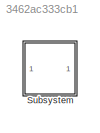
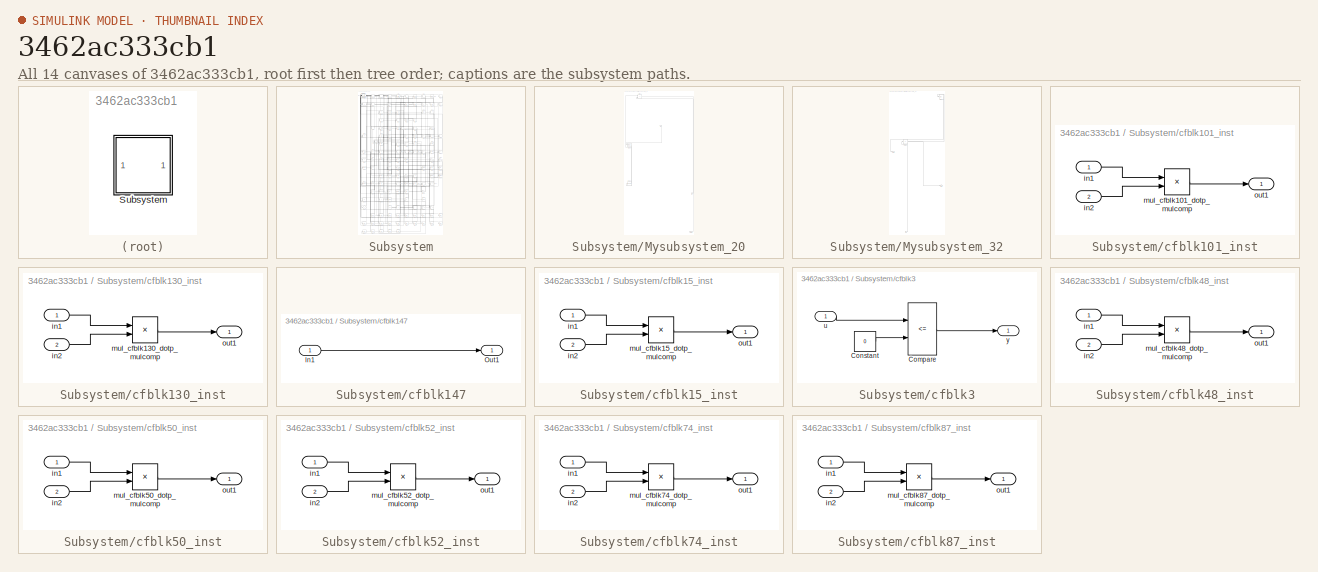
[diagram: thumbnail index - all 14 canvases of the model, root first then tree order]
MODEL slx_3462ac333cb1
KIND model
CONFIG AbsTol = auto
CONFIG EnableMultiTasking = off
CONFIG FixedStep = auto
CONFIG MaxStep = auto
CONFIG MinStep = auto
CONFIG RelTol = 1e-3
CONFIG SampleTimeConstraint = Unconstrained
CONFIG SolverName = VariableStepAuto
CONFIG StartTime = 0.0
CONFIG StopTime = 10.0
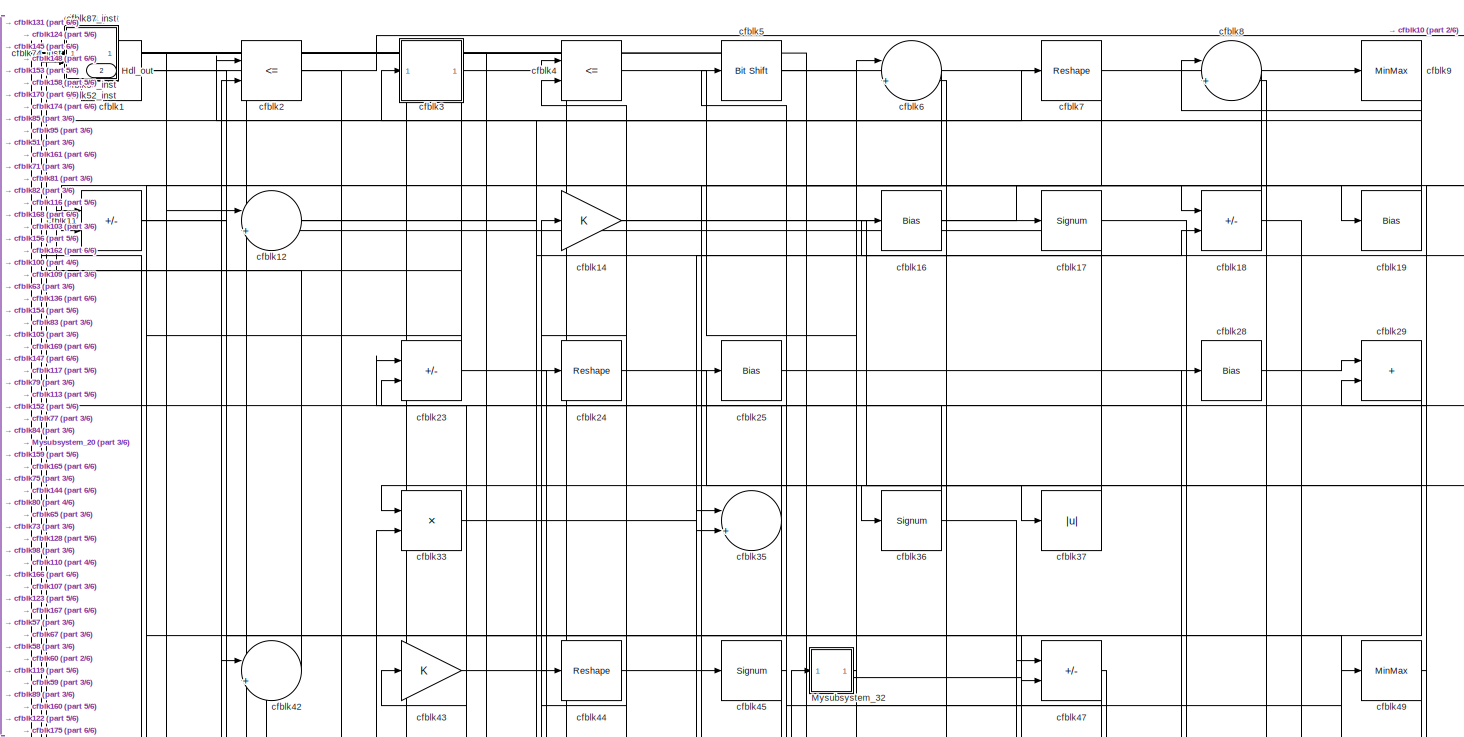
[diagram: Subsystem - part 1/6, full width, top band]
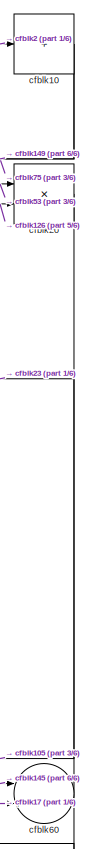
[diagram: Subsystem - part 2/6, top right region]
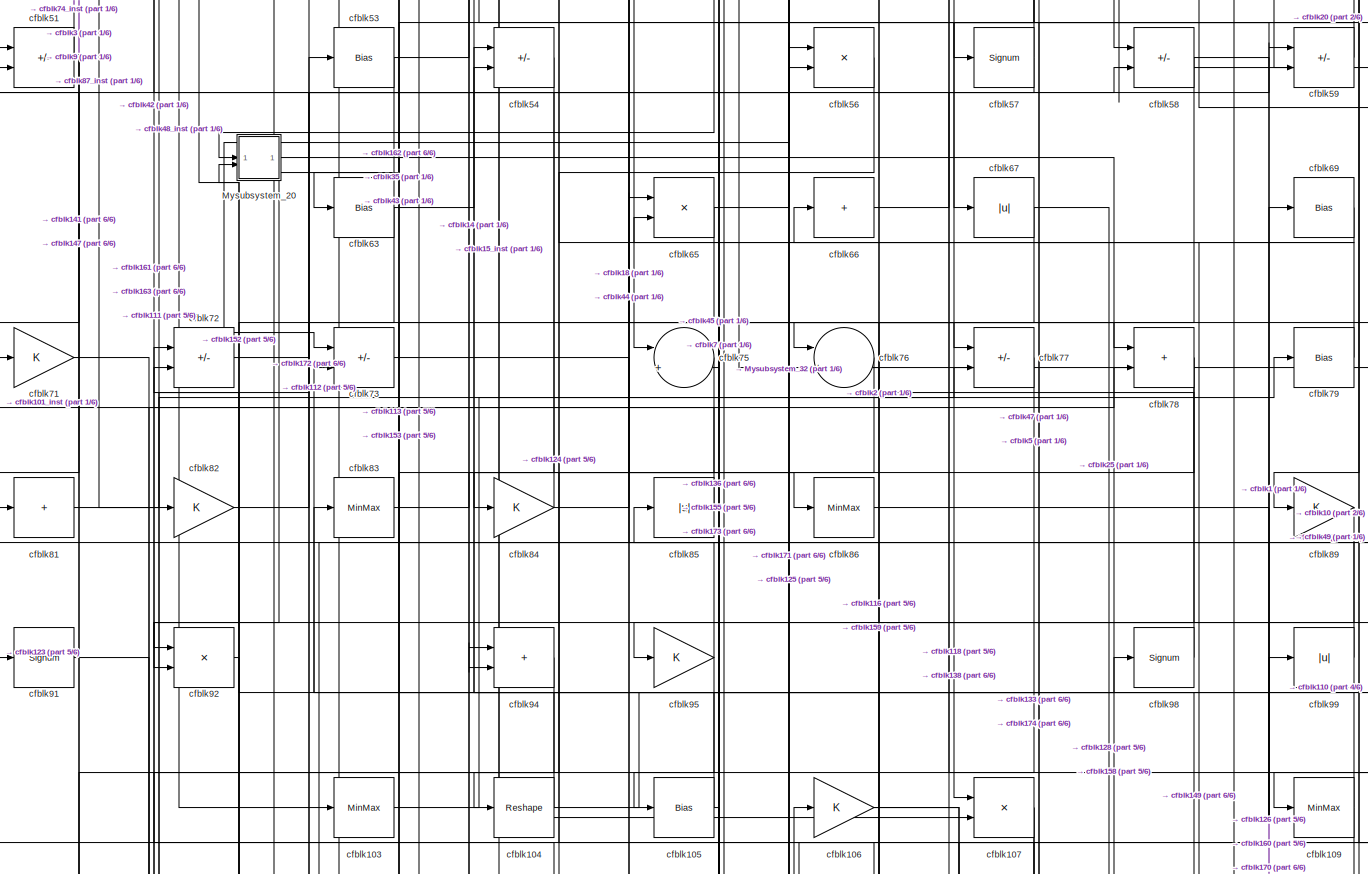
[diagram: Subsystem - part 3/6, full width, middle band]
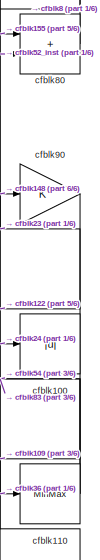
[diagram: Subsystem - part 4/6, middle right region]
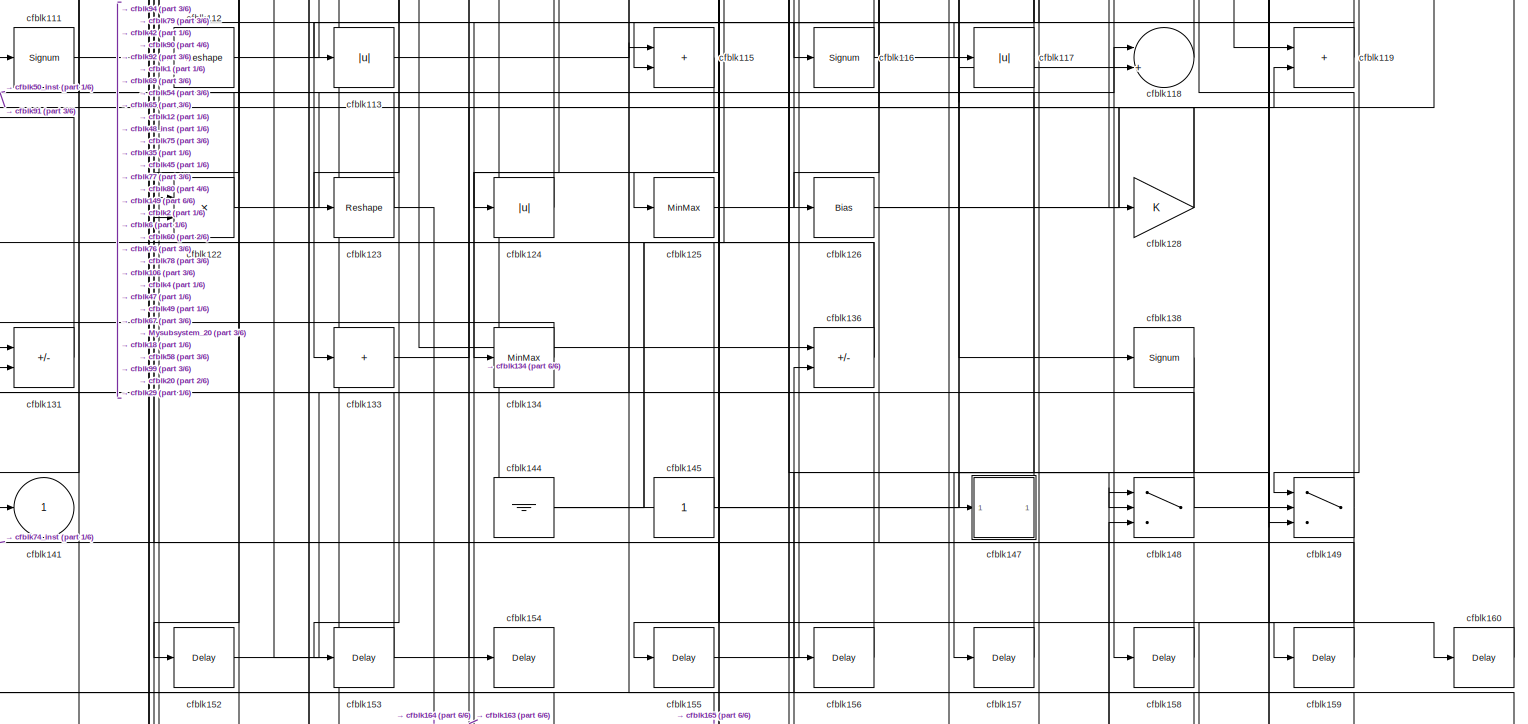
[diagram: Subsystem - part 5/6, full width, bottom band]
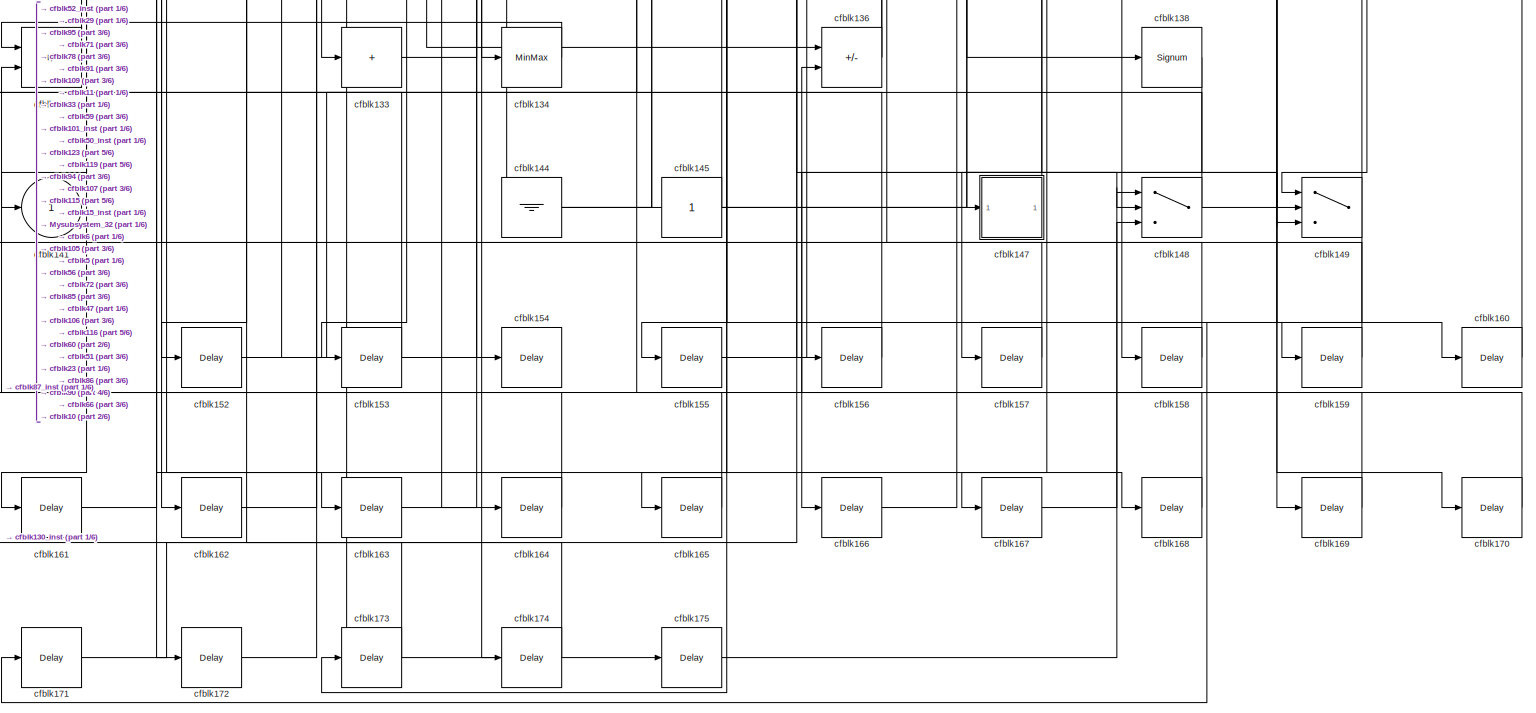
[diagram: Subsystem - part 6/6, full width, bottom band]
BLOCK [SubSystem] Subsystem
BLOCK [Outport] Subsystem/Hdl_out
  OutDataTypeStr = uint8
  Port = 2
  SampleTime = 1
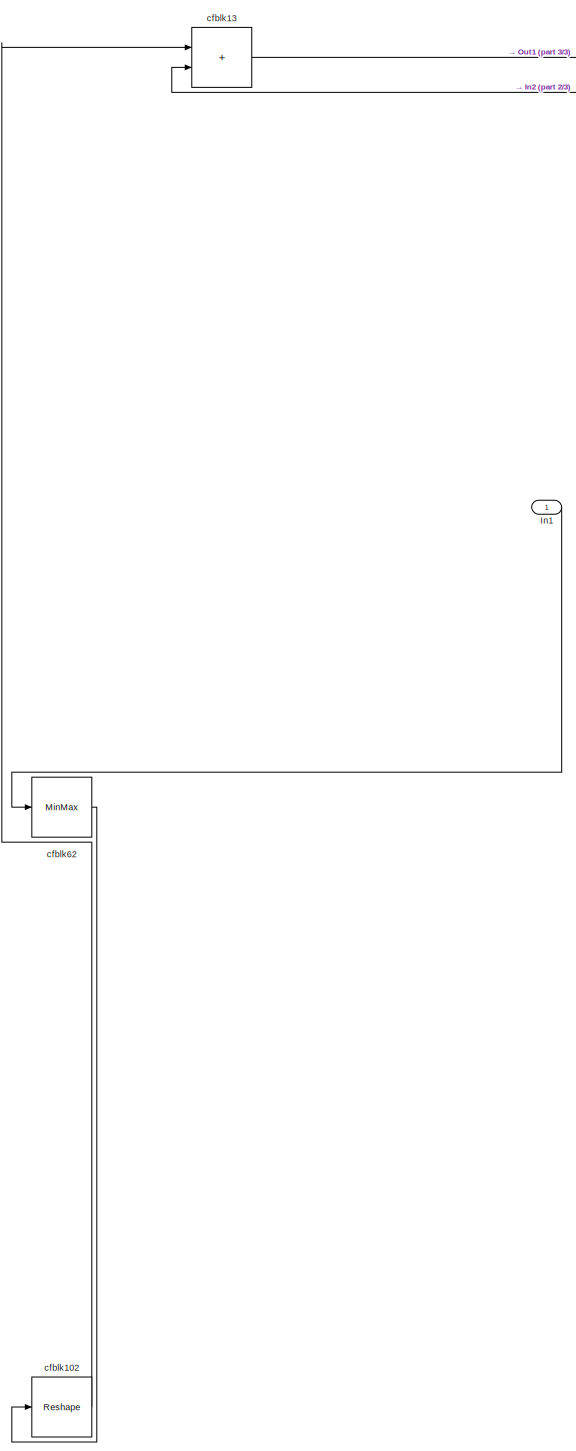
[diagram: Subsystem/Mysubsystem_20 - part 1/3, middle left region]
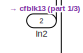
[diagram: Subsystem/Mysubsystem_20 - part 2/3, bottom right region]
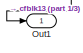
[diagram: Subsystem/Mysubsystem_20 - part 3/3, bottom right region]
BLOCK [SubSystem] Subsystem/Mysubsystem_20
BLOCK [Inport] Subsystem/Mysubsystem_20/In1
  OutDataTypeStr = uint8
  PortDimensions = 1
  SampleTime = 1
BLOCK [Inport] Subsystem/Mysubsystem_20/In2
  OutDataTypeStr = uint8
  Port = 2
  PortDimensions = 1
  SampleTime = 1
BLOCK [Outport] Subsystem/Mysubsystem_20/Out1
  SampleTime = 1
BLOCK [Reshape] Subsystem/Mysubsystem_20/cfblk102
BLOCK [Sum] Subsystem/Mysubsystem_20/cfblk13
  IconShape = rectangular
BLOCK [MinMax] Subsystem/Mysubsystem_20/cfblk62
BLOCK [SubSystem] Subsystem/Mysubsystem_32
BLOCK [Inport] Subsystem/Mysubsystem_32/In1
  OutDataTypeStr = uint8
  PortDimensions = 1
  SampleTime = 1
BLOCK [Outport] Subsystem/Mysubsystem_32/Out1
  SampleTime = 1
BLOCK [Outport] Subsystem/Mysubsystem_32/Out2
  Port = 2
  SampleTime = 1
BLOCK [Abs] Subsystem/Mysubsystem_32/cfblk27
  SaturateOnIntegerOverflow = off
BLOCK [Sum] Subsystem/Mysubsystem_32/cfblk64
  IconShape = rectangular
  Inputs = +
BLOCK [Reference] Subsystem/cfblk1  REF=simulink/Logic and Bit
Operations/Extract Bits
  LibrarySourceBlock = hdlsllib/Logic and Bit\nOperations/Extract Bits
  SourceBlock = simulink/Logic and Bit\nOperations/Extract Bits
  SourceType = Extract Bits
BLOCK [Sum] Subsystem/cfblk10
  IconShape = rectangular
  Inputs = +
  OutDataTypeStr = uint8
BLOCK [Abs] Subsystem/cfblk100
  OutDataTypeStr = uint8
  SaturateOnIntegerOverflow = off
BLOCK [SubSystem] Subsystem/cfblk101_inst
BLOCK [Inport] Subsystem/cfblk101_inst/in1
  OutDataTypeStr = uint8
  SampleTime = 1
BLOCK [Inport] Subsystem/cfblk101_inst/in2
  OutDataTypeStr = uint8
  Port = 2
  SampleTime = 1
BLOCK [Product] Subsystem/cfblk101_inst/mul_cfblk101_dotp_mulcomp
  Inputs = **
  OutDataTypeStr = uint8
  SampleTime = 1
BLOCK [Outport] Subsystem/cfblk101_inst/out1
  OutDataTypeStr = uint8
  SampleTime = 1
BLOCK [MinMax] Subsystem/cfblk103
  OutDataTypeStr = uint8
BLOCK [Reshape] Subsystem/cfblk104
BLOCK [Bias] Subsystem/cfblk105
  Bias = 0.0
  SaturateOnIntegerOverflow = off
BLOCK [Gain] Subsystem/cfblk106
  OutDataTypeStr = uint8
BLOCK [Product] Subsystem/cfblk107
  Inputs = */
  OutDataTypeStr = uint8
  RndMeth = Zero
  SaturateOnIntegerOverflow = on
BLOCK [MinMax] Subsystem/cfblk109
  OutDataTypeStr = uint8
BLOCK [Sum] Subsystem/cfblk11
  IconShape = rectangular
  Inputs = +-
  OutDataTypeStr = uint8
BLOCK [MinMax] Subsystem/cfblk110
  OutDataTypeStr = uint8
BLOCK [Signum] Subsystem/cfblk111
BLOCK [Reshape] Subsystem/cfblk112
BLOCK [Abs] Subsystem/cfblk113
  OutDataTypeStr = uint8
  SaturateOnIntegerOverflow = off
BLOCK [Sum] Subsystem/cfblk115
  IconShape = rectangular
  OutDataTypeStr = uint8
BLOCK [Signum] Subsystem/cfblk116
BLOCK [Abs] Subsystem/cfblk117
  OutDataTypeStr = uint8
  SaturateOnIntegerOverflow = off
BLOCK [Sum] Subsystem/cfblk118
  Inputs = |++
  OutDataTypeStr = uint8
BLOCK [Sum] Subsystem/cfblk119
  IconShape = rectangular
  OutDataTypeStr = uint8
BLOCK [Sum] Subsystem/cfblk12
  Inputs = |++
  OutDataTypeStr = uint8
BLOCK [Product] Subsystem/cfblk122
  Inputs = */
  OutDataTypeStr = uint8
  RndMeth = Zero
  SaturateOnIntegerOverflow = on
BLOCK [Reshape] Subsystem/cfblk123
BLOCK [Abs] Subsystem/cfblk124
  OutDataTypeStr = uint8
  SaturateOnIntegerOverflow = off
BLOCK [MinMax] Subsystem/cfblk125
  OutDataTypeStr = uint8
BLOCK [Bias] Subsystem/cfblk126
  Bias = 0.0
  SaturateOnIntegerOverflow = off
BLOCK [Gain] Subsystem/cfblk128
  OutDataTypeStr = uint8
BLOCK [SubSystem] Subsystem/cfblk130_inst
BLOCK [Inport] Subsystem/cfblk130_inst/in1
  OutDataTypeStr = uint8
  SampleTime = 1
BLOCK [Inport] Subsystem/cfblk130_inst/in2
  OutDataTypeStr = uint8
  Port = 2
  SampleTime = 1
BLOCK [Product] Subsystem/cfblk130_inst/mul_cfblk130_dotp_mulcomp
  Inputs = **
  OutDataTypeStr = uint8
  SampleTime = 1
BLOCK [Outport] Subsystem/cfblk130_inst/out1
  OutDataTypeStr = uint8
  SampleTime = 1
BLOCK [Sum] Subsystem/cfblk131
  IconShape = rectangular
  Inputs = +-
  OutDataTypeStr = uint8
BLOCK [Sum] Subsystem/cfblk133
  IconShape = rectangular
  Inputs = +
  OutDataTypeStr = uint8
BLOCK [MinMax] Subsystem/cfblk134
  OutDataTypeStr = uint8
BLOCK [Sum] Subsystem/cfblk136
  IconShape = rectangular
  Inputs = +-
  OutDataTypeStr = uint8
BLOCK [Signum] Subsystem/cfblk138
BLOCK [Gain] Subsystem/cfblk14
  OutDataTypeStr = uint8
BLOCK [Outport] Subsystem/cfblk141
  OutDataTypeStr = uint8
  SampleTime = 1
  VectorParamsAs1DForOutWhenUnconnected = off
BLOCK [Ground] Subsystem/cfblk144
BLOCK [Constant] Subsystem/cfblk145
  OutDataTypeStr = uint8
  SampleTime = -1
BLOCK [SubSystem] Subsystem/cfblk147
BLOCK [Inport] Subsystem/cfblk147/In1
  OutDataTypeStr = uint8
  PortDimensions = 1
  SampleTime = 1
BLOCK [Outport] Subsystem/cfblk147/Out1
  SampleTime = 1
BLOCK [Switch] Subsystem/cfblk148
  InputSameDT = off
  OutDataTypeStr = uint8
  SaturateOnIntegerOverflow = off
BLOCK [Switch] Subsystem/cfblk149
  InputSameDT = off
  OutDataTypeStr = uint8
  SaturateOnIntegerOverflow = off
BLOCK [Delay] Subsystem/cfblk152
  InputPortMap = u0
  SampleTime = 1
BLOCK [Delay] Subsystem/cfblk153
  InputPortMap = u0
  SampleTime = 1
BLOCK [Delay] Subsystem/cfblk154
  InputPortMap = u0
  SampleTime = 1
BLOCK [Delay] Subsystem/cfblk155
  InputPortMap = u0
  SampleTime = 1
BLOCK [Delay] Subsystem/cfblk156
  InputPortMap = u0
  SampleTime = 1
BLOCK [Delay] Subsystem/cfblk157
  InputPortMap = u0
  SampleTime = 1
BLOCK [Delay] Subsystem/cfblk158
  InputPortMap = u0
  SampleTime = 1
BLOCK [Delay] Subsystem/cfblk159
  InputPortMap = u0
  SampleTime = 1
BLOCK [SubSystem] Subsystem/cfblk15_inst
BLOCK [Inport] Subsystem/cfblk15_inst/in1
  OutDataTypeStr = uint8
  SampleTime = 1
BLOCK [Inport] Subsystem/cfblk15_inst/in2
  OutDataTypeStr = uint8
  Port = 2
  SampleTime = 1
BLOCK [Product] Subsystem/cfblk15_inst/mul_cfblk15_dotp_mulcomp
  Inputs = **
  OutDataTypeStr = uint8
  SampleTime = 1
BLOCK [Outport] Subsystem/cfblk15_inst/out1
  OutDataTypeStr = uint8
  SampleTime = 1
BLOCK [Bias] Subsystem/cfblk16
  Bias = 0.0
  SaturateOnIntegerOverflow = off
BLOCK [Delay] Subsystem/cfblk160
  InputPortMap = u0
  SampleTime = 1
BLOCK [Delay] Subsystem/cfblk161
  InputPortMap = u0
  SampleTime = 1
BLOCK [Delay] Subsystem/cfblk162
  InputPortMap = u0
  SampleTime = 1
BLOCK [Delay] Subsystem/cfblk163
  InputPortMap = u0
  SampleTime = 1
BLOCK [Delay] Subsystem/cfblk164
  InputPortMap = u0
  SampleTime = 1
BLOCK [Delay] Subsystem/cfblk165
  InputPortMap = u0
  SampleTime = 1
BLOCK [Delay] Subsystem/cfblk166
  InputPortMap = u0
  SampleTime = 1
BLOCK [Delay] Subsystem/cfblk167
  InputPortMap = u0
  SampleTime = 1
BLOCK [Delay] Subsystem/cfblk168
  InputPortMap = u0
  SampleTime = 1
BLOCK [Delay] Subsystem/cfblk169
  InputPortMap = u0
  SampleTime = 1
BLOCK [Signum] Subsystem/cfblk17
BLOCK [Delay] Subsystem/cfblk170
  InputPortMap = u0
  SampleTime = 1
BLOCK [Delay] Subsystem/cfblk171
  InputPortMap = u0
  SampleTime = 1
BLOCK [Delay] Subsystem/cfblk172
  InputPortMap = u0
  SampleTime = 1
BLOCK [Delay] Subsystem/cfblk173
  InputPortMap = u0
  SampleTime = 1
BLOCK [Delay] Subsystem/cfblk174
  InputPortMap = u0
  SampleTime = 1
BLOCK [Delay] Subsystem/cfblk175
  InputPortMap = u0
  SampleTime = 1
BLOCK [Sum] Subsystem/cfblk18
  IconShape = rectangular
  Inputs = +-
  OutDataTypeStr = uint8
BLOCK [Bias] Subsystem/cfblk19
  Bias = 0.0
  SaturateOnIntegerOverflow = off
BLOCK [RelationalOperator] Subsystem/cfblk2
  InputSameDT = off
  Operator = <=
  OutDataTypeStr = boolean
BLOCK [Product] Subsystem/cfblk20
  Inputs = */
  OutDataTypeStr = uint8
  RndMeth = Zero
  SaturateOnIntegerOverflow = on
BLOCK [Sum] Subsystem/cfblk23
  IconShape = rectangular
  Inputs = +-
  OutDataTypeStr = uint8
BLOCK [Reshape] Subsystem/cfblk24
BLOCK [Bias] Subsystem/cfblk25
  Bias = 0.0
  SaturateOnIntegerOverflow = off
BLOCK [Bias] Subsystem/cfblk28
  Bias = 0.0
  SaturateOnIntegerOverflow = off
BLOCK [Sum] Subsystem/cfblk29
  IconShape = rectangular
  OutDataTypeStr = uint8
BLOCK [SubSystem] Subsystem/cfblk3
BLOCK [RelationalOperator] Subsystem/cfblk3/Compare
  Operator = <=
  OutDataTypeStr = fixdt(0, 8)
BLOCK [Constant] Subsystem/cfblk3/Constant
  DisableCoverage = on
  OutDataTypeStr = Inherit: Inherit via back propagation
  PreserveConstantTs = on
  SampleTime = -1
  Value = 0
BLOCK [Inport] Subsystem/cfblk3/u
  OutDataTypeStr = uint8
  SampleTime = 1
BLOCK [Outport] Subsystem/cfblk3/y
  SampleTime = 1
BLOCK [Product] Subsystem/cfblk33
  Inputs = */
  OutDataTypeStr = uint8
  RndMeth = Zero
  SaturateOnIntegerOverflow = on
BLOCK [Sum] Subsystem/cfblk35
  Inputs = |++
  OutDataTypeStr = uint8
BLOCK [Signum] Subsystem/cfblk36
BLOCK [Abs] Subsystem/cfblk37
  OutDataTypeStr = uint8
  SaturateOnIntegerOverflow = off
BLOCK [RelationalOperator] Subsystem/cfblk4
  InputSameDT = off
  Operator = <=
  OutDataTypeStr = boolean
BLOCK [Sum] Subsystem/cfblk42
  Inputs = |++
  OutDataTypeStr = uint8
BLOCK [Gain] Subsystem/cfblk43
  OutDataTypeStr = uint8
BLOCK [Reshape] Subsystem/cfblk44
BLOCK [Signum] Subsystem/cfblk45
BLOCK [Sum] Subsystem/cfblk47
  IconShape = rectangular
  Inputs = +-
  OutDataTypeStr = uint8
BLOCK [SubSystem] Subsystem/cfblk48_inst
BLOCK [Inport] Subsystem/cfblk48_inst/in1
  OutDataTypeStr = uint8
  SampleTime = 1
BLOCK [Inport] Subsystem/cfblk48_inst/in2
  OutDataTypeStr = uint8
  Port = 2
  SampleTime = 1
BLOCK [Product] Subsystem/cfblk48_inst/mul_cfblk48_dotp_mulcomp
  Inputs = **
  OutDataTypeStr = uint8
  SampleTime = 1
BLOCK [Outport] Subsystem/cfblk48_inst/out1
  OutDataTypeStr = uint8
  SampleTime = 1
BLOCK [MinMax] Subsystem/cfblk49
  OutDataTypeStr = uint8
BLOCK [Reference] Subsystem/cfblk5  REF=hdlsllib/Logic and Bit
Operations/Bit Shift
  SourceBlock = hdlsllib/Logic and Bit\nOperations/Bit Shift
  SourceType = Bit Shift
BLOCK [SubSystem] Subsystem/cfblk50_inst
BLOCK [Inport] Subsystem/cfblk50_inst/in1
  OutDataTypeStr = uint8
  SampleTime = 1
BLOCK [Inport] Subsystem/cfblk50_inst/in2
  OutDataTypeStr = uint8
  Port = 2
  SampleTime = 1
BLOCK [Product] Subsystem/cfblk50_inst/mul_cfblk50_dotp_mulcomp
  Inputs = **
  OutDataTypeStr = uint8
  SampleTime = 1
BLOCK [Outport] Subsystem/cfblk50_inst/out1
  OutDataTypeStr = uint8
  SampleTime = 1
BLOCK [Sum] Subsystem/cfblk51
  IconShape = rectangular
  Inputs = +-
  OutDataTypeStr = uint8
BLOCK [SubSystem] Subsystem/cfblk52_inst
BLOCK [Inport] Subsystem/cfblk52_inst/in1
  OutDataTypeStr = uint8
  SampleTime = 1
BLOCK [Inport] Subsystem/cfblk52_inst/in2
  OutDataTypeStr = uint8
  Port = 2
  SampleTime = 1
BLOCK [Product] Subsystem/cfblk52_inst/mul_cfblk52_dotp_mulcomp
  Inputs = **
  OutDataTypeStr = uint8
  SampleTime = 1
BLOCK [Outport] Subsystem/cfblk52_inst/out1
  OutDataTypeStr = uint8
  SampleTime = 1
BLOCK [Bias] Subsystem/cfblk53
  Bias = 0.0
  SaturateOnIntegerOverflow = off
BLOCK [Sum] Subsystem/cfblk54
  IconShape = rectangular
  Inputs = +-
  OutDataTypeStr = uint8
BLOCK [Product] Subsystem/cfblk56
  Inputs = */
  OutDataTypeStr = uint8
  RndMeth = Zero
  SaturateOnIntegerOverflow = on
BLOCK [Signum] Subsystem/cfblk57
BLOCK [Sum] Subsystem/cfblk58
  IconShape = rectangular
  Inputs = +-
  OutDataTypeStr = uint8
BLOCK [Sum] Subsystem/cfblk59
  IconShape = rectangular
  Inputs = +-
  OutDataTypeStr = uint8
BLOCK [Sum] Subsystem/cfblk6
  Inputs = |++
  OutDataTypeStr = uint8
BLOCK [Sum] Subsystem/cfblk60
  Inputs = |++
  OutDataTypeStr = uint8
BLOCK [Bias] Subsystem/cfblk63
  Bias = 0.0
  SaturateOnIntegerOverflow = off
BLOCK [Product] Subsystem/cfblk65
  Inputs = */
  OutDataTypeStr = uint8
  RndMeth = Zero
  SaturateOnIntegerOverflow = on
BLOCK [Sum] Subsystem/cfblk66
  IconShape = rectangular
  Inputs = +
  OutDataTypeStr = uint8
BLOCK [Abs] Subsystem/cfblk67
  OutDataTypeStr = uint8
  SaturateOnIntegerOverflow = off
BLOCK [Bias] Subsystem/cfblk69
  Bias = 0.0
  SaturateOnIntegerOverflow = off
BLOCK [Reshape] Subsystem/cfblk7
BLOCK [Gain] Subsystem/cfblk71
  OutDataTypeStr = uint8
BLOCK [Sum] Subsystem/cfblk72
  IconShape = rectangular
  Inputs = +-
  OutDataTypeStr = uint8
BLOCK [Sum] Subsystem/cfblk73
  IconShape = rectangular
  Inputs = +-
  OutDataTypeStr = uint8
BLOCK [SubSystem] Subsystem/cfblk74_inst
BLOCK [Inport] Subsystem/cfblk74_inst/in1
  OutDataTypeStr = uint8
  SampleTime = 1
BLOCK [Inport] Subsystem/cfblk74_inst/in2
  OutDataTypeStr = uint8
  Port = 2
  SampleTime = 1
BLOCK [Product] Subsystem/cfblk74_inst/mul_cfblk74_dotp_mulcomp
  Inputs = **
  OutDataTypeStr = uint8
  SampleTime = 1
BLOCK [Outport] Subsystem/cfblk74_inst/out1
  OutDataTypeStr = uint8
  SampleTime = 1
BLOCK [Sum] Subsystem/cfblk75
  Inputs = |++
  OutDataTypeStr = uint8
BLOCK [Sum] Subsystem/cfblk76
  Inputs = |++
  OutDataTypeStr = uint8
BLOCK [Sum] Subsystem/cfblk77
  IconShape = rectangular
  Inputs = +-
  OutDataTypeStr = uint8
BLOCK [Sum] Subsystem/cfblk78
  IconShape = rectangular
  OutDataTypeStr = uint8
BLOCK [Bias] Subsystem/cfblk79
  Bias = 0.0
  SaturateOnIntegerOverflow = off
BLOCK [Sum] Subsystem/cfblk8
  Inputs = |++
  OutDataTypeStr = uint8
BLOCK [Sum] Subsystem/cfblk80
  IconShape = rectangular
  OutDataTypeStr = uint8
BLOCK [Sum] Subsystem/cfblk81
  IconShape = rectangular
  Inputs = +
  OutDataTypeStr = uint8
BLOCK [Gain] Subsystem/cfblk82
  OutDataTypeStr = uint8
BLOCK [MinMax] Subsystem/cfblk83
  OutDataTypeStr = uint8
BLOCK [Gain] Subsystem/cfblk84
  OutDataTypeStr = uint8
BLOCK [Abs] Subsystem/cfblk85
  OutDataTypeStr = uint8
  SaturateOnIntegerOverflow = off
BLOCK [MinMax] Subsystem/cfblk86
  OutDataTypeStr = uint8
BLOCK [SubSystem] Subsystem/cfblk87_inst
BLOCK [Inport] Subsystem/cfblk87_inst/in1
  OutDataTypeStr = uint8
  SampleTime = 1
BLOCK [Inport] Subsystem/cfblk87_inst/in2
  OutDataTypeStr = uint8
  Port = 2
  SampleTime = 1
BLOCK [Product] Subsystem/cfblk87_inst/mul_cfblk87_dotp_mulcomp
  Inputs = **
  OutDataTypeStr = uint8
  SampleTime = 1
BLOCK [Outport] Subsystem/cfblk87_inst/out1
  OutDataTypeStr = uint8
  SampleTime = 1
BLOCK [Gain] Subsystem/cfblk89
  OutDataTypeStr = uint8
BLOCK [MinMax] Subsystem/cfblk9
  OutDataTypeStr = uint8
BLOCK [Gain] Subsystem/cfblk90
  OutDataTypeStr = uint8
BLOCK [Signum] Subsystem/cfblk91
BLOCK [Product] Subsystem/cfblk92
  Inputs = */
  OutDataTypeStr = uint8
  RndMeth = Zero
  SaturateOnIntegerOverflow = on
BLOCK [Sum] Subsystem/cfblk94
  IconShape = rectangular
  OutDataTypeStr = uint8
BLOCK [Gain] Subsystem/cfblk95
  OutDataTypeStr = uint8
BLOCK [Signum] Subsystem/cfblk98
BLOCK [Abs] Subsystem/cfblk99
  OutDataTypeStr = uint8
  SaturateOnIntegerOverflow = off
LINE Subsystem/Mysubsystem_20/In1:1 -> Subsystem/Mysubsystem_20/cfblk62:1
LINE Subsystem/Mysubsystem_20/In2:1 -> Subsystem/Mysubsystem_20/cfblk13:2
LINE Subsystem/Mysubsystem_20/cfblk102:1 -> Subsystem/Mysubsystem_20/cfblk13:1
LINE Subsystem/Mysubsystem_20/cfblk13:1 -> Subsystem/Mysubsystem_20/Out1:1
LINE Subsystem/Mysubsystem_20/cfblk62:1 -> Subsystem/Mysubsystem_20/cfblk102:1
LINE Subsystem/Mysubsystem_20:1 -> Subsystem/cfblk158:1
LINE Subsystem/Mysubsystem_32/In1:1 -> Subsystem/Mysubsystem_32/cfblk64:1
LINE Subsystem/Mysubsystem_32/cfblk27:1 -> Subsystem/Mysubsystem_32/Out1:1
NET Subsystem/Mysubsystem_32/cfblk64:1 -> Subsystem/Mysubsystem_32/Out2:1, Subsystem/Mysubsystem_32/cfblk27:1
LINE Subsystem/Mysubsystem_32:1 -> Subsystem/cfblk73:1
LINE Subsystem/Mysubsystem_32:2 -> Subsystem/cfblk107:1
NET Subsystem/cfblk100:1 -> Subsystem/cfblk109:1, Subsystem/cfblk23:2
LINE Subsystem/cfblk101_inst/in1:1 -> Subsystem/cfblk101_inst/mul_cfblk101_dotp_mulcomp:1
LINE Subsystem/cfblk101_inst/in2:1 -> Subsystem/cfblk101_inst/mul_cfblk101_dotp_mulcomp:2
LINE Subsystem/cfblk101_inst/mul_cfblk101_dotp_mulcomp:1 -> Subsystem/cfblk101_inst/out1:1
LINE Subsystem/cfblk101_inst:1 -> Subsystem/cfblk175:1
LINE Subsystem/cfblk103:1 -> Subsystem/cfblk77:2
NET Subsystem/cfblk104:1 -> Subsystem/cfblk73:2, Subsystem/cfblk98:1
NET Subsystem/cfblk105:1 -> Subsystem/cfblk14:1, Subsystem/cfblk173:1
NET Subsystem/cfblk106:1 -> Subsystem/cfblk118:2, Subsystem/cfblk138:1
NET Subsystem/cfblk107:1 -> Subsystem/cfblk133:1, Subsystem/cfblk174:1
NET Subsystem/cfblk109:1 -> Subsystem/cfblk162:1, Subsystem/cfblk43:1
NET Subsystem/cfblk10:1 -> Subsystem/cfblk149:1, Subsystem/cfblk75:1
NET Subsystem/cfblk110:1 -> Subsystem/cfblk54:1, Subsystem/cfblk83:1
LINE Subsystem/cfblk111:1 -> Subsystem/cfblk79:1
LINE Subsystem/cfblk112:1 -> Subsystem/cfblk69:1
LINE Subsystem/cfblk113:1 -> Subsystem/cfblk45:1
LINE Subsystem/cfblk115:1 -> Subsystem/cfblk134:1
NET Subsystem/cfblk116:1 -> Subsystem/cfblk149:3, Subsystem/cfblk2:2
NET Subsystem/cfblk117:1 -> Subsystem/cfblk157:1, Subsystem/cfblk4:2
LINE Subsystem/cfblk118:1 -> Subsystem/Mysubsystem_20:2
LINE Subsystem/cfblk119:1 -> Subsystem/cfblk115:2
NET Subsystem/cfblk11:1 -> Subsystem/cfblk168:1, Subsystem/cfblk47:2
NET Subsystem/cfblk122:1 -> Subsystem/cfblk118:1, Subsystem/cfblk50_inst:2
NET Subsystem/cfblk123:1 -> Subsystem/cfblk164:1, Subsystem/cfblk91:1
LINE Subsystem/cfblk124:1 -> Subsystem/cfblk48_inst:2
LINE Subsystem/cfblk125:1 -> Subsystem/cfblk106:1
NET Subsystem/cfblk126:1 -> Subsystem/cfblk20:2, Subsystem/cfblk99:1
NET Subsystem/cfblk128:1 -> Subsystem/cfblk111:1, Subsystem/cfblk6:2
NET Subsystem/cfblk12:1 -> Subsystem/cfblk154:1, Subsystem/cfblk18:1
LINE Subsystem/cfblk130_inst/in1:1 -> Subsystem/cfblk130_inst/mul_cfblk130_dotp_mulcomp:1
LINE Subsystem/cfblk130_inst/in2:1 -> Subsystem/cfblk130_inst/mul_cfblk130_dotp_mulcomp:2
LINE Subsystem/cfblk130_inst/mul_cfblk130_dotp_mulcomp:1 -> Subsystem/cfblk130_inst/out1:1
LINE Subsystem/cfblk130_inst:1 -> Subsystem/cfblk17:1
LINE Subsystem/cfblk131:1 -> Subsystem/cfblk52_inst:1
LINE Subsystem/cfblk133:1 -> Subsystem/cfblk94:1
LINE Subsystem/cfblk134:1 -> Subsystem/cfblk131:1
NET Subsystem/cfblk136:1 -> Subsystem/cfblk72:1, Subsystem/cfblk85:1
LINE Subsystem/cfblk138:1 -> Subsystem/cfblk166:1
NET Subsystem/cfblk144:1 -> Subsystem/Mysubsystem_32:1, Subsystem/cfblk6:1
NET Subsystem/cfblk145:1 -> Subsystem/cfblk101_inst:2, Subsystem/cfblk149:2, Subsystem/cfblk60:1
LINE Subsystem/cfblk147/In1:1 -> Subsystem/cfblk147/Out1:1
LINE Subsystem/cfblk147:1 -> Subsystem/cfblk51:1
NET Subsystem/cfblk148:1 -> Subsystem/cfblk52_inst:2, Subsystem/cfblk90:1
NET Subsystem/cfblk149:1 -> Subsystem/cfblk171:1, Subsystem/cfblk66:1
LINE Subsystem/cfblk14:1 -> Subsystem/cfblk37:1
LINE Subsystem/cfblk152:1 -> Subsystem/cfblk35:1
LINE Subsystem/cfblk153:1 -> Subsystem/cfblk50_inst:1
LINE Subsystem/cfblk154:1 -> Subsystem/cfblk1:1
LINE Subsystem/cfblk155:1 -> Subsystem/cfblk80:1
LINE Subsystem/cfblk156:1 -> Subsystem/cfblk42:2
LINE Subsystem/cfblk157:1 -> Subsystem/cfblk122:2
LINE Subsystem/cfblk158:1 -> Subsystem/cfblk74_inst:1
LINE Subsystem/cfblk159:1 -> Subsystem/cfblk76:2
LINE Subsystem/cfblk15_inst/in1:1 -> Subsystem/cfblk15_inst/mul_cfblk15_dotp_mulcomp:1
LINE Subsystem/cfblk15_inst/in2:1 -> Subsystem/cfblk15_inst/mul_cfblk15_dotp_mulcomp:2
LINE Subsystem/cfblk15_inst/mul_cfblk15_dotp_mulcomp:1 -> Subsystem/cfblk15_inst/out1:1
NET Subsystem/cfblk15_inst:1 -> Subsystem/cfblk107:2, Subsystem/cfblk147:1
LINE Subsystem/cfblk160:1 -> Subsystem/cfblk29:2
LINE Subsystem/cfblk161:1 -> Subsystem/cfblk78:2
LINE Subsystem/cfblk162:1 -> Subsystem/cfblk33:2
LINE Subsystem/cfblk163:1 -> Subsystem/cfblk119:2
LINE Subsystem/cfblk164:1 -> Subsystem/cfblk131:2
LINE Subsystem/cfblk165:1 -> Subsystem/cfblk115:1
LINE Subsystem/cfblk166:1 -> Subsystem/cfblk47:1
LINE Subsystem/cfblk167:1 -> Subsystem/cfblk148:3
LINE Subsystem/cfblk168:1 -> Subsystem/cfblk15_inst:1
LINE Subsystem/cfblk169:1 -> Subsystem/cfblk136:2
LINE Subsystem/cfblk16:1 -> Subsystem/cfblk19:1
LINE Subsystem/cfblk170:1 -> Subsystem/cfblk87_inst:1
LINE Subsystem/cfblk171:1 -> Subsystem/cfblk56:2
LINE Subsystem/cfblk172:1 -> Subsystem/cfblk59:1
LINE Subsystem/cfblk173:1 -> Subsystem/cfblk72:2
LINE Subsystem/cfblk174:1 -> Subsystem/cfblk130_inst:2
LINE Subsystem/cfblk175:1 -> Subsystem/cfblk148:1
NET Subsystem/cfblk17:1 -> Subsystem/cfblk12:2, Subsystem/cfblk33:1, Subsystem/cfblk60:2
NET Subsystem/cfblk18:1 -> Subsystem/cfblk119:1, Subsystem/cfblk87_inst:2
NET Subsystem/cfblk19:1 -> Subsystem/cfblk11:2, Subsystem/cfblk3:1, Subsystem/cfblk8:1
LINE Subsystem/cfblk1:1 -> Subsystem/cfblk59:2
LINE Subsystem/cfblk20:1 -> Subsystem/cfblk105:1
NET Subsystem/cfblk23:1 -> Subsystem/cfblk11:1, Subsystem/cfblk169:1
LINE Subsystem/cfblk24:1 -> Subsystem/cfblk100:1
LINE Subsystem/cfblk25:1 -> Subsystem/cfblk58:1
LINE Subsystem/cfblk28:1 -> Subsystem/cfblk29:1
NET Subsystem/cfblk29:1 -> Subsystem/cfblk161:1, Subsystem/cfblk36:1
LINE Subsystem/cfblk2:1 -> Subsystem/cfblk10:1
LINE Subsystem/cfblk33:1 -> Subsystem/cfblk35:2
NET Subsystem/cfblk35:1 -> Subsystem/cfblk15_inst:2, Subsystem/cfblk63:1
NET Subsystem/cfblk36:1 -> Subsystem/cfblk110:1, Subsystem/cfblk25:1
LINE Subsystem/cfblk37:1 -> Subsystem/cfblk16:1
NET Subsystem/cfblk3:1 -> Subsystem/cfblk4:1, Subsystem/cfblk71:1
LINE Subsystem/cfblk42:1 -> Subsystem/cfblk130_inst:1
LINE Subsystem/cfblk43:1 -> Subsystem/cfblk28:1
LINE Subsystem/cfblk44:1 -> Subsystem/cfblk77:1
NET Subsystem/cfblk45:1 -> Subsystem/Mysubsystem_20:1, Subsystem/cfblk159:1
NET Subsystem/cfblk47:1 -> Subsystem/cfblk123:1, Subsystem/cfblk167:1, Subsystem/cfblk67:1
LINE Subsystem/cfblk48_inst/in1:1 -> Subsystem/cfblk48_inst/mul_cfblk48_dotp_mulcomp:1
LINE Subsystem/cfblk48_inst/in2:1 -> Subsystem/cfblk48_inst/mul_cfblk48_dotp_mulcomp:2
LINE Subsystem/cfblk48_inst/mul_cfblk48_dotp_mulcomp:1 -> Subsystem/cfblk48_inst/out1:1
NET Subsystem/cfblk48_inst:1 -> Subsystem/Hdl_out:1, Subsystem/cfblk103:1
NET Subsystem/cfblk49:1 -> Subsystem/cfblk117:1, Subsystem/cfblk89:1
LINE Subsystem/cfblk4:1 -> Subsystem/cfblk156:1
LINE Subsystem/cfblk50_inst/in1:1 -> Subsystem/cfblk50_inst/mul_cfblk50_dotp_mulcomp:1
LINE Subsystem/cfblk50_inst/in2:1 -> Subsystem/cfblk50_inst/mul_cfblk50_dotp_mulcomp:2
LINE Subsystem/cfblk50_inst/mul_cfblk50_dotp_mulcomp:1 -> Subsystem/cfblk50_inst/out1:1
LINE Subsystem/cfblk50_inst:1 -> Subsystem/cfblk136:1
LINE Subsystem/cfblk51:1 -> Subsystem/cfblk74_inst:2
LINE Subsystem/cfblk52_inst/in1:1 -> Subsystem/cfblk52_inst/mul_cfblk52_dotp_mulcomp:1
LINE Subsystem/cfblk52_inst/in2:1 -> Subsystem/cfblk52_inst/mul_cfblk52_dotp_mulcomp:2
LINE Subsystem/cfblk52_inst/mul_cfblk52_dotp_mulcomp:1 -> Subsystem/cfblk52_inst/out1:1
LINE Subsystem/cfblk52_inst:1 -> Subsystem/cfblk80:2
NET Subsystem/cfblk53:1 -> Subsystem/cfblk20:1, Subsystem/cfblk92:2
LINE Subsystem/cfblk54:1 -> Subsystem/cfblk153:1
LINE Subsystem/cfblk56:1 -> Subsystem/cfblk104:1
NET Subsystem/cfblk57:1 -> Subsystem/cfblk51:2, Subsystem/cfblk5:1
NET Subsystem/cfblk58:1 -> Subsystem/cfblk160:1, Subsystem/cfblk76:1
LINE Subsystem/cfblk59:1 -> Subsystem/cfblk57:1
LINE Subsystem/cfblk5:1 -> Subsystem/cfblk148:2
NET Subsystem/cfblk60:1 -> Subsystem/cfblk126:1, Subsystem/cfblk23:1
NET Subsystem/cfblk63:1 -> Subsystem/cfblk54:2, Subsystem/cfblk92:1
NET Subsystem/cfblk65:1 -> Subsystem/cfblk113:1, Subsystem/cfblk49:1
LINE Subsystem/cfblk66:1 -> Subsystem/cfblk58:2
NET Subsystem/cfblk67:1 -> Subsystem/cfblk125:1, Subsystem/cfblk128:1
LINE Subsystem/cfblk69:1 -> Subsystem/cfblk65:2
LINE Subsystem/cfblk6:1 -> Subsystem/cfblk165:1
LINE Subsystem/cfblk71:1 -> Subsystem/cfblk172:1
LINE Subsystem/cfblk72:1 -> Subsystem/cfblk78:1
LINE Subsystem/cfblk73:1 -> Subsystem/cfblk86:1
LINE Subsystem/cfblk74_inst/in1:1 -> Subsystem/cfblk74_inst/mul_cfblk74_dotp_mulcomp:1
LINE Subsystem/cfblk74_inst/in2:1 -> Subsystem/cfblk74_inst/mul_cfblk74_dotp_mulcomp:2
LINE Subsystem/cfblk74_inst/mul_cfblk74_dotp_mulcomp:1 -> Subsystem/cfblk74_inst/out1:1
LINE Subsystem/cfblk74_inst:1 -> Subsystem/cfblk12:1
LINE Subsystem/cfblk75:1 -> Subsystem/cfblk124:1
LINE Subsystem/cfblk76:1 -> Subsystem/cfblk94:2
LINE Subsystem/cfblk77:1 -> Subsystem/cfblk155:1
NET Subsystem/cfblk78:1 -> Subsystem/cfblk116:1, Subsystem/cfblk84:1
LINE Subsystem/cfblk79:1 -> Subsystem/cfblk44:1
LINE Subsystem/cfblk7:1 -> Subsystem/cfblk75:2
LINE Subsystem/cfblk80:1 -> Subsystem/cfblk8:2
LINE Subsystem/cfblk81:1 -> Subsystem/cfblk53:1
LINE Subsystem/cfblk82:1 -> Subsystem/cfblk56:1
LINE Subsystem/cfblk83:1 -> Subsystem/cfblk7:1
NET Subsystem/cfblk84:1 -> Subsystem/cfblk18:2, Subsystem/cfblk42:1
LINE Subsystem/cfblk85:1 -> Subsystem/cfblk101_inst:1
LINE Subsystem/cfblk86:1 -> Subsystem/cfblk170:1
LINE Subsystem/cfblk87_inst/in1:1 -> Subsystem/cfblk87_inst/mul_cfblk87_dotp_mulcomp:1
LINE Subsystem/cfblk87_inst/in2:1 -> Subsystem/cfblk87_inst/mul_cfblk87_dotp_mulcomp:2
LINE Subsystem/cfblk87_inst/mul_cfblk87_dotp_mulcomp:1 -> Subsystem/cfblk87_inst/out1:1
NET Subsystem/cfblk87_inst:1 -> Subsystem/cfblk82:1, Subsystem/cfblk9:1
LINE Subsystem/cfblk89:1 -> Subsystem/cfblk95:1
LINE Subsystem/cfblk8:1 -> Subsystem/cfblk24:1
LINE Subsystem/cfblk90:1 -> Subsystem/cfblk122:1
LINE Subsystem/cfblk91:1 -> Subsystem/cfblk163:1
LINE Subsystem/cfblk92:1 -> Subsystem/cfblk152:1
LINE Subsystem/cfblk94:1 -> Subsystem/cfblk112:1
NET Subsystem/cfblk95:1 -> Subsystem/cfblk141:1, Subsystem/cfblk48_inst:1
LINE Subsystem/cfblk98:1 -> Subsystem/cfblk2:1
LINE Subsystem/cfblk99:1 -> Subsystem/cfblk65:1
LINE Subsystem/cfblk9:1 -> Subsystem/cfblk81:1
note: NET lines group one-source signal fan-out (src -> all destinations, sorted); 1:1 wires keep LINE
